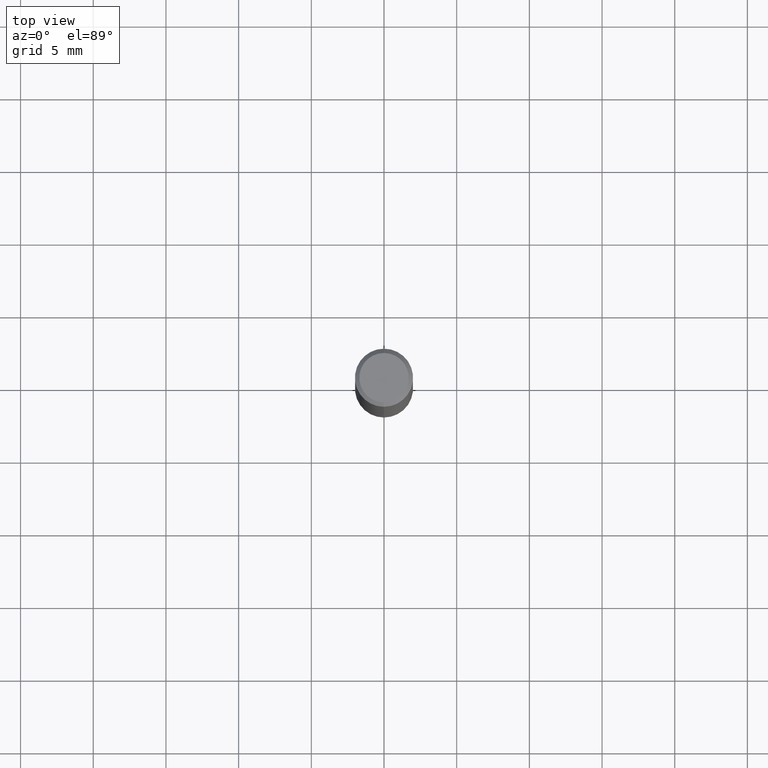
[diagram: clean part render]
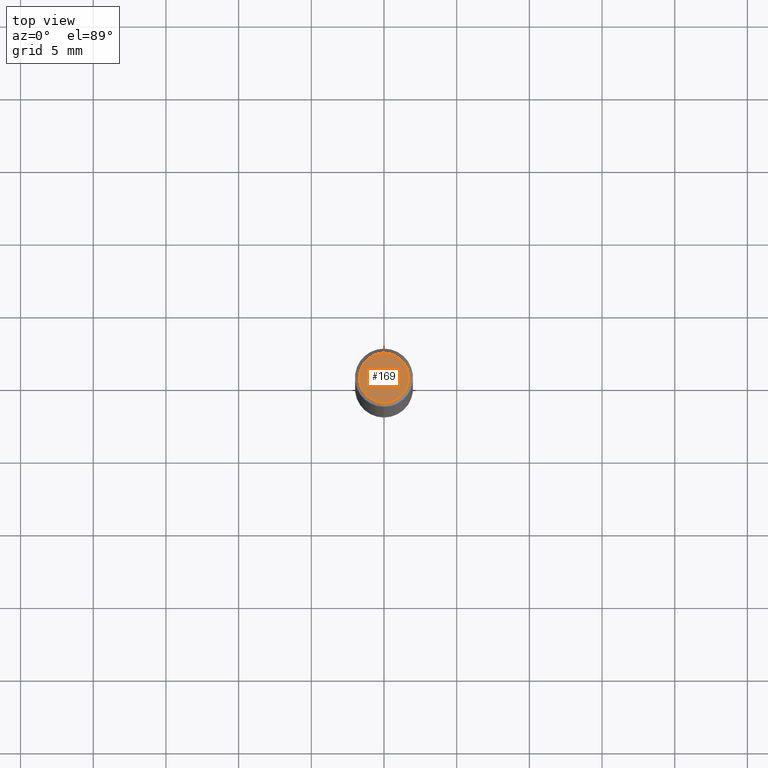
[diagram: same view with one face highlighted and labeled with its STEP entity id]
A machine part, top view. The second image highlights one B-rep face of the part: STEP entity #169.
In plain terms, the highlighted planar face has unit normal (-0, 0, 1).
Its self-contained STEP definition (entity closure, byte-faithful):
#169=ADVANCED_FACE('',(#410),#411,.T.);
#213=EDGE_CURVE('',#339,#275,#458,.T.);
#271=EDGE_CURVE('',#275,#339,#522,.T.);
#275=VERTEX_POINT('',#527);
#339=VERTEX_POINT('',#603);
#410=FACE_OUTER_BOUND('',#679,.T.);
#411=PLANE('',#680);
#458=CIRCLE('',#743,1.7);
#522=CIRCLE('',#823,1.7);
#527=CARTESIAN_POINT('',(2.08183080149804E-016,-1.7,0.00999999999999801));
#603=CARTESIAN_POINT('',(0.0,1.7,0.00999999999999801));
#679=EDGE_LOOP('',(#1000,#1001));
#680=AXIS2_PLACEMENT_3D('',#1002,#1003,#1004);
#743=AXIS2_PLACEMENT_3D('',#1054,#1055,#1056);
#823=AXIS2_PLACEMENT_3D('',#1139,#1140,#1141);
#1000=ORIENTED_EDGE('',*,*,#213,.F.);
#1001=ORIENTED_EDGE('',*,*,#271,.F.);
#1002=CARTESIAN_POINT('',(0.0,0.85,0.00999999999999801));
#1003=DIRECTION('',(-0.0,0.0,1.0));
#1004=DIRECTION('',(0.0,-1.0,0.0));
#1054=CARTESIAN_POINT('',(0.0,0.0,0.00999999999999801));
#1055=DIRECTION('',(0.0,0.0,-1.0));
#1056=DIRECTION('',(0.0,1.0,0.0));
#1139=CARTESIAN_POINT('',(0.0,0.0,0.00999999999999801));
#1140=DIRECTION('',(0.0,0.0,-1.0));
#1141=DIRECTION('',(0.0,1.0,0.0));